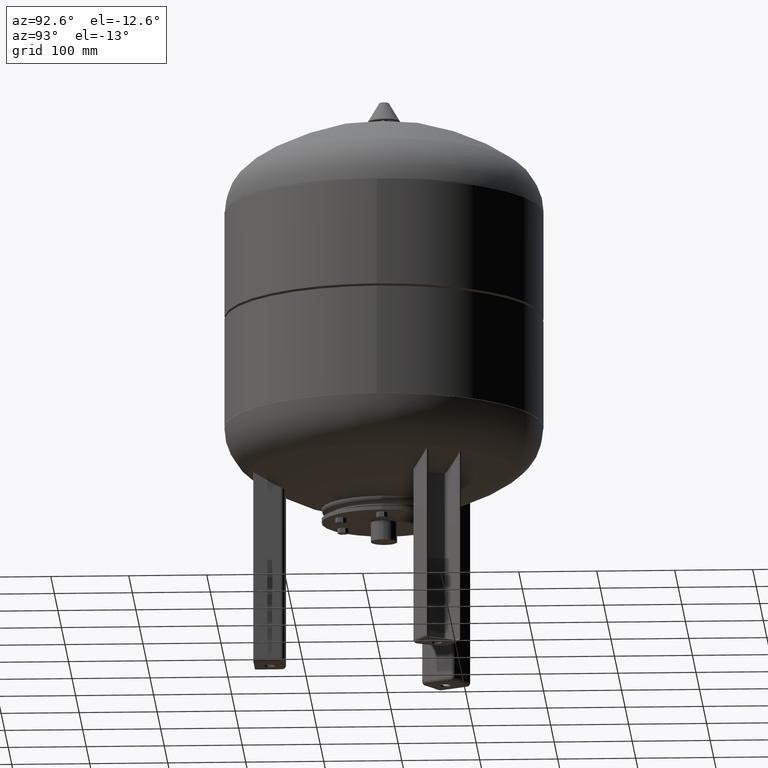
[diagram: clean part render]
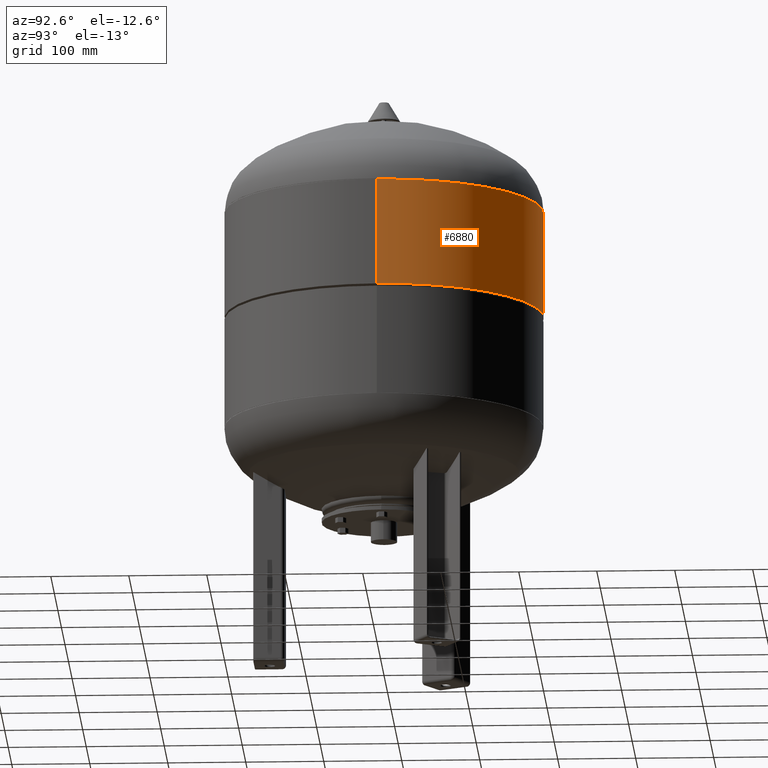
[diagram: same view with one face highlighted and labeled with its STEP entity id]
A machine part, auxiliary view. The second image highlights one B-rep face of the part: STEP entity #6880.
In plain terms, the highlighted cylindrical surface (partial cylindrical patch) has radius 204.5 mm, axis along (-0, 0, -1).
Its self-contained STEP definition (entity closure, byte-faithful):
#6780=CARTESIAN_POINT('',(-204.500000000000030,-2.522772E-014,455.0));
#6781=VERTEX_POINT('',#6780);
#6797=CARTESIAN_POINT('',(204.500000000000030,-1.828699E-016,455.0));
#6798=VERTEX_POINT('',#6797);
#6820=CARTESIAN_POINT('',(-204.500000000000030,-3.361655E-014,592.0));
#6821=VERTEX_POINT('',#6820);
#6822=CARTESIAN_POINT('',(-204.500000000000030,-2.522772E-014,455.0));
#6823=DIRECTION('',(0.0,0.0,1.0));
#6824=VECTOR('',#6823,137.0);
#6825=LINE('',#6822,#6824);
#6826=EDGE_CURVE('',#6781,#6821,#6825,.T.);
#6829=CARTESIAN_POINT('',(204.500000000000030,-8.571700E-015,592.0));
#6830=VERTEX_POINT('',#6829);
#6831=CARTESIAN_POINT('',(204.500000000000030,-1.828699E-016,455.0));
#6832=DIRECTION('',(0.0,0.0,1.0));
#6833=VECTOR('',#6832,137.0);
#6834=LINE('',#6831,#6833);
#6835=EDGE_CURVE('',#6798,#6830,#6834,.T.);
#6852=CARTESIAN_POINT('',(1.714506E-014,-8.572528E-015,592.0));
#6853=DIRECTION('',(0.0,0.0,-1.0));
#6854=DIRECTION('',(-1.0,0.0,0.0));
#6855=AXIS2_PLACEMENT_3D('',#6852,#6853,#6854);
#6856=CIRCLE('',#6855,204.500000000000030);
#6857=EDGE_CURVE('',#6821,#6830,#6856,.T.);
#6863=CARTESIAN_POINT('',(8.756225E-015,-4.378112E-015,523.500000000000000));
#6864=DIRECTION('',(-1.224647E-016,6.123234E-017,-1.0));
#6865=DIRECTION('',(-1.0,0.0,0.0));
#6866=AXIS2_PLACEMENT_3D('',#6863,#6864,#6865);
#6867=CYLINDRICAL_SURFACE('',#6866,204.500000000000030);
#6868=ORIENTED_EDGE('',*,*,#6826,.T.);
#6869=ORIENTED_EDGE('',*,*,#6857,.T.);
#6870=ORIENTED_EDGE('',*,*,#6835,.F.);
#6871=CARTESIAN_POINT('',(3.673940E-016,-1.836970E-016,455.0));
#6872=DIRECTION('',(0.0,0.0,-1.0));
#6873=DIRECTION('',(-1.0,0.0,0.0));
#6874=AXIS2_PLACEMENT_3D('',#6871,#6872,#6873);
#6875=CIRCLE('',#6874,204.500000000000030);
#6876=EDGE_CURVE('',#6781,#6798,#6875,.T.);
#6877=ORIENTED_EDGE('',*,*,#6876,.F.);
#6878=EDGE_LOOP('',(#6868,#6869,#6870,#6877));
#6879=FACE_OUTER_BOUND('',#6878,.T.);
#6880=ADVANCED_FACE('',(#6879),#6867,.T.);